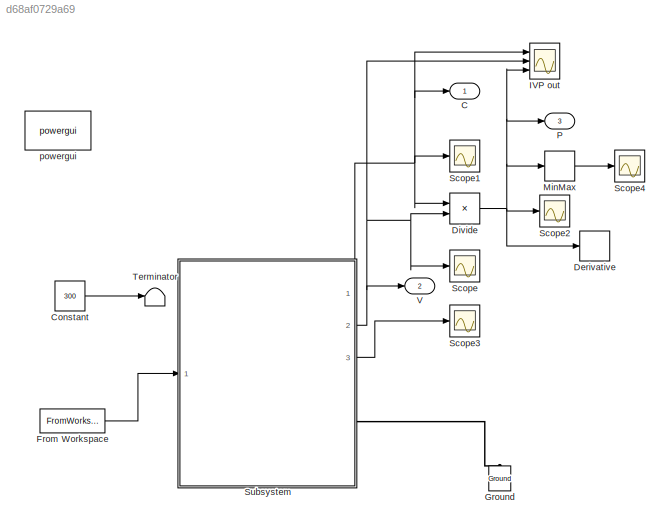
MODEL slx_d68af0729a69
KIND model
BLOCK [Outport] C 
  IconDisplay = Port number
  InitialOutput = 0
BLOCK [Constant] Constant
  Value = 300
BLOCK [Derivative] Derivative
BLOCK [Product] Divide
  InputSameDT = off
  Inputs = **
  OutDataTypeStr = Inherit: Inherit via internal rule
  Ports = [2, 1]
  RndMeth = Floor
  SaturateOnIntegerOverflow = off
BLOCK [FromWorkspace] From Workspace
  OutDataTypeStr = double
  SampleTime = 0
  VariableName = lux_ws
  ZeroCross = on
BLOCK [Reference] Ground  REF=powerlib/Elements/Ground
  LConnTagsString = a
  Ports = [0, 0, 0, 0, 0, 1]
  SourceBlock = powerlib/Elements/Ground
  SourceType = Ground
BLOCK [Scope] IVP out
  DataFormat = StructureWithTime
  Floating = off
  LimitDataPoints = off
  NumInputPorts = 3
  Ports = [3]
  SampleTime = 0
  SaveName = Simulation_out
  ShowLegends = off
  YMax = 5~5~5
  YMin = -5~-5~-5
  ZoomMode = xonly
BLOCK [MinMax] MinMax
  Function = max
  InputSameDT = off
  Ports = [1, 1]
  SaturateOnIntegerOverflow = off
BLOCK [Outport] P
  IconDisplay = Port number
  InitialOutput = 0
  Port = 3
BLOCK [Scope] Scope
  DataFormat = StructureWithTime
  Floating = off
  LimitDataPoints = off
  NumInputPorts = 1
  Ports = [1]
  SampleTime = 0
  ShowLegends = off
BLOCK [Scope] Scope1
  DataFormat = StructureWithTime
  Floating = off
  NumInputPorts = 1
  Ports = [1]
  SampleTime = 0
  SaveName = ScopeData1
  ShowLegends = off
BLOCK [Scope] Scope2
  DataFormat = StructureWithTime
  Floating = off
  NumInputPorts = 1
  Ports = [1]
  SampleTime = 0
  SaveName = ScopeData2
  ShowLegends = off
  ZoomMode = xonly
BLOCK [Scope] Scope3
  DataFormat = StructureWithTime
  Floating = off
  NumInputPorts = 1
  Ports = [1]
  SampleTime = 0
  SaveName = ScopeData3
  ShowLegends = off
BLOCK [Scope] Scope4
  DataFormat = StructureWithTime
  Floating = off
  NumInputPorts = 1
  Ports = [1]
  SampleTime = 0
  SaveName = ScopeData4
  ShowLegends = off
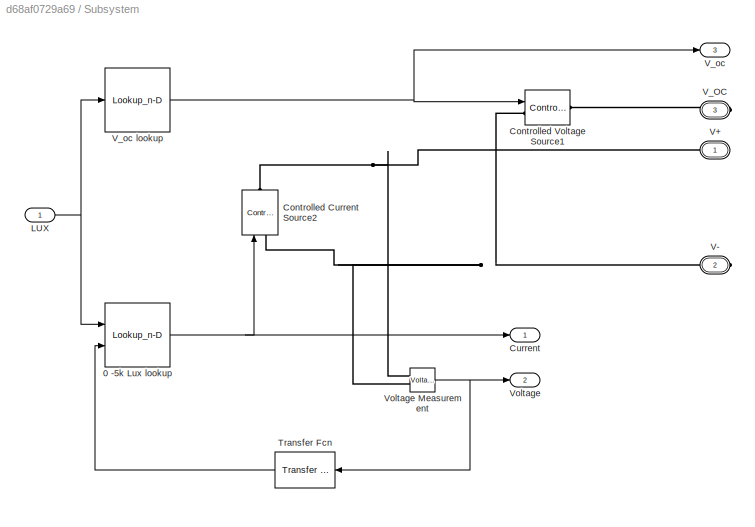
BLOCK [SubSystem] Subsystem
  Ports = [1, 3, 0, 0, 0, 0, 3]
  RequestExecContextInheritance = off
BLOCK [Lookup_n-D] Subsystem/0 -5k Lux lookup
  BreakpointsForDimension1 = Irradiance
  BreakpointsForDimension2 = ArrayVoltage
  Ports = [2, 1]
  RndMeth = Simplest
  Table = ArrayCurrent
BLOCK [Reference] Subsystem/Controlled Current Source2  REF=powerlib/Electrical
Sources/Controlled Current Source
  Amplitude = 0
  Frequency = 0
  Initialize = on
  Measurements = None
  Phase = 0
  Ports = [1, 0, 0, 0, 0, 1, 1]
  SourceBlock = powerlib/Electrical\nSources/Controlled Current Source
  SourceType = Controlled Current Source
  Source_Type = DC
BLOCK [Reference] Subsystem/Controlled Voltage Source1  REF=powerlib/Electrical
Sources/Controlled Voltage Source
  Amplitude = 0
  Frequency = 0
  Initialize = on
  Measurements = Voltage
  Phase = 0
  Ports = [1, 0, 0, 0, 0, 1, 1]
  SourceBlock = powerlib/Electrical\nSources/Controlled Voltage Source
  SourceType = Controlled Voltage Source
  Source_Type = AC
BLOCK [Outport] Subsystem/Current
  IconDisplay = Port number
BLOCK [Inport] Subsystem/LUX
  IconDisplay = Port number
BLOCK [Reference] Subsystem/Transfer Fcn  REF=simulink_extras/Additional
Linear/Transfer Fcn
(with initial states)
  D = [.0001  1]
  N = [1]
  Ports = [1, 1]
  SourceBlock = simulink_extras/Additional\nLinear/Transfer Fcn\n(with initial states)
  SourceType = Transfer Function with Initial States
  X0 = 0
BLOCK [PMIOPort] Subsystem/V+
  Port = 1
  Side = Right
  Tag = PMCPort
BLOCK [PMIOPort] Subsystem/V-
  Port = 2
  Side = Right
  Tag = PMCPort
BLOCK [PMIOPort] Subsystem/V_OC
  Port = 3
  Side = Right
  Tag = PMCPort
BLOCK [Outport] Subsystem/V_oc 
  IconDisplay = Port number
  Port = 3
BLOCK [Lookup_n-D] Subsystem/V_oc lookup
  BreakpointsForDimension1 = Irradiance
  NumberOfTableDimensions = 1
  Ports = [1, 1]
  RndMeth = Simplest
  Table = Array_Voc
BLOCK [Outport] Subsystem/Voltage
  IconDisplay = Port number
  Port = 2
BLOCK [Reference] Subsystem/Voltage Measurement  REF=powerlib/Measurements/Voltage Measurement
  OutputType = Complex
  PSBequivalent = 0
  PhasorSimulation = off
  Ports = [0, 1, 0, 0, 0, 2]
  SourceBlock = powerlib/Measurements/Voltage Measurement
  SourceType = Voltage Measurement
BLOCK [Terminator] Terminator
BLOCK [Outport] V
  IconDisplay = Port number
  InitialOutput = 0
  Port = 2
BLOCK [Reference] powergui  REF=powerlib/powergui
  DisableRonSwitches = off
  DisableSnubberDevices = off
  DisableVfSwitches = off
  DisplayEquations = off
  DisplayStyle = 1
  EnableUseOfTLC = off
  ErrMax = 1e-4
  Frange = [0:2:500]
  FreqAxis = off
  FunctionMessages = off
  HookPort = off
  Interpol = off
  Iterations = 50
  MaxFrequency = 1000
  Pbase = 100e6
  Ports = []
  Priority = 1
  ResistiveCurrentMeasurement = off
  RestoreLinks = warning
  RmsSteady = 1
  SPID = off
  SampleTime = 50e-6
  ShowGrid = off
  SolverType = Tustin
  SourceBlock = powerlib/powergui
  SourceType = PSB option menu block
  StartTime = 0.0
  SwTol = 0
  Ts = 0
  UnitsV = kV
  UnitsW = MW
  UserDataPersistent = on
  Xlog = on
  Ylog = off
  ZoomFFT = off
  cycles = 1
  display = off
  echomessages = off
  frequency = 50
  frequencyindice = 0
  frequencyindicesteady = 1
  fundamental = 60
  methode = off
  save = off
  structure = 0
  variable = ZData
  x0status = blocks
LINE Constant:1 -> Terminator:1
NET Divide:1 -> Derivative:1, IVP out:3, MinMax:1, P:1, Scope2:1
LINE From Workspace:1 -> Subsystem:1
LINE MinMax:1 -> Scope4:1
NET Subsystem/0 -5k Lux lookup:1 -> Subsystem/Controlled Current Source2:1, Subsystem/Current:1
NET Subsystem/LUX:1 -> Subsystem/0 -5k Lux lookup:1, Subsystem/V_oc lookup:1
LINE Subsystem/Transfer Fcn:1 -> Subsystem/0 -5k Lux lookup:2
NET Subsystem/V_oc lookup:1 -> Subsystem/Controlled Voltage Source1:1, Subsystem/V_oc :1
NET Subsystem/Voltage Measurement:1 -> Subsystem/Transfer Fcn:1, Subsystem/Voltage:1
NET Subsystem:1 -> C :1, Divide:1, IVP out:1, Scope1:1
NET Subsystem:2 -> Divide:2, IVP out:2, Scope:1, V:1
LINE Subsystem:3 -> Scope3:1
PLINE Ground:LConn1 -- Subsystem:RConn2
PNET net1: Subsystem/Controlled Current Source2:LConn1 -- Subsystem/Controlled Voltage Source1:LConn1 -- Subsystem/V-:RConn1 -- Subsystem/Voltage Measurement:LConn2
PNET net2: Subsystem/Controlled Current Source2:RConn1 -- Subsystem/V+:RConn1 -- Subsystem/Voltage Measurement:LConn1
PLINE Subsystem/Controlled Voltage Source1:RConn1 -- Subsystem/V_OC:RConn1
note: NET lines group one-source signal fan-out (src -> all destinations, sorted); 1:1 wires keep LINE; PNET lines group multi-terminal physical nets as a canonical sorted terminal list (undirected conserving connections); 2-terminal nets keep the pairwise PLINE form
